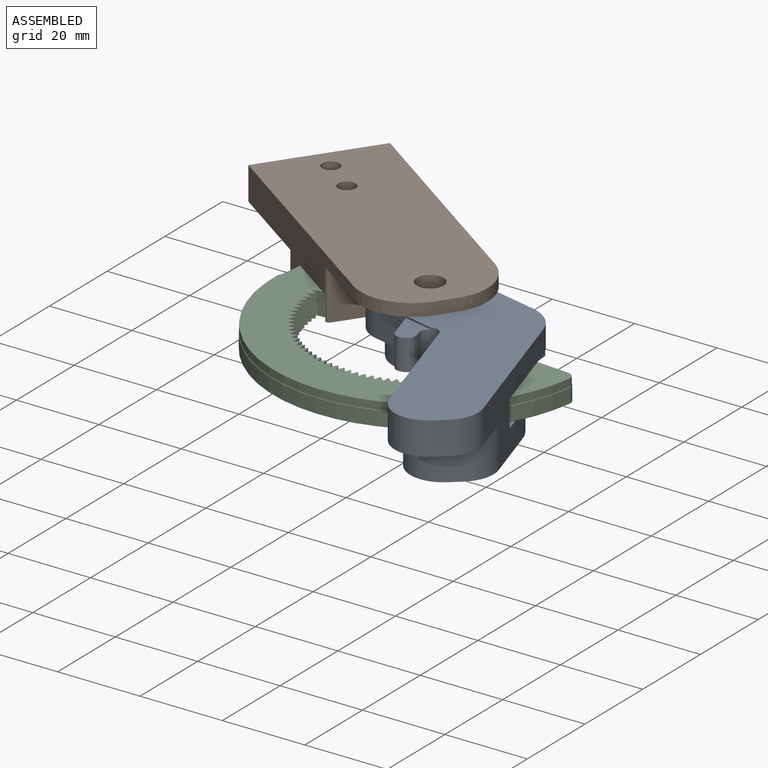
[diagram: assembled view]
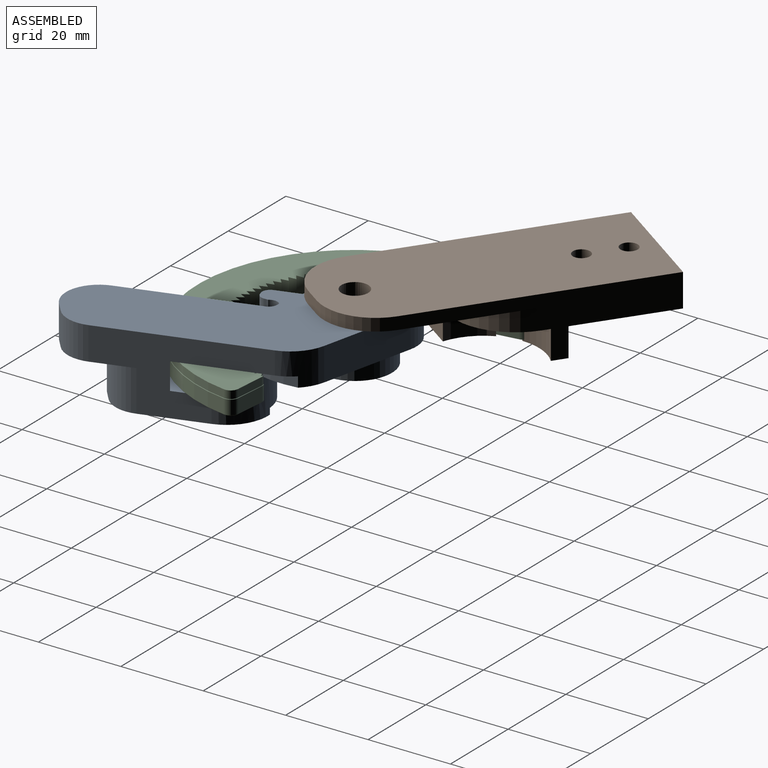
[diagram: assembled view, second angle]
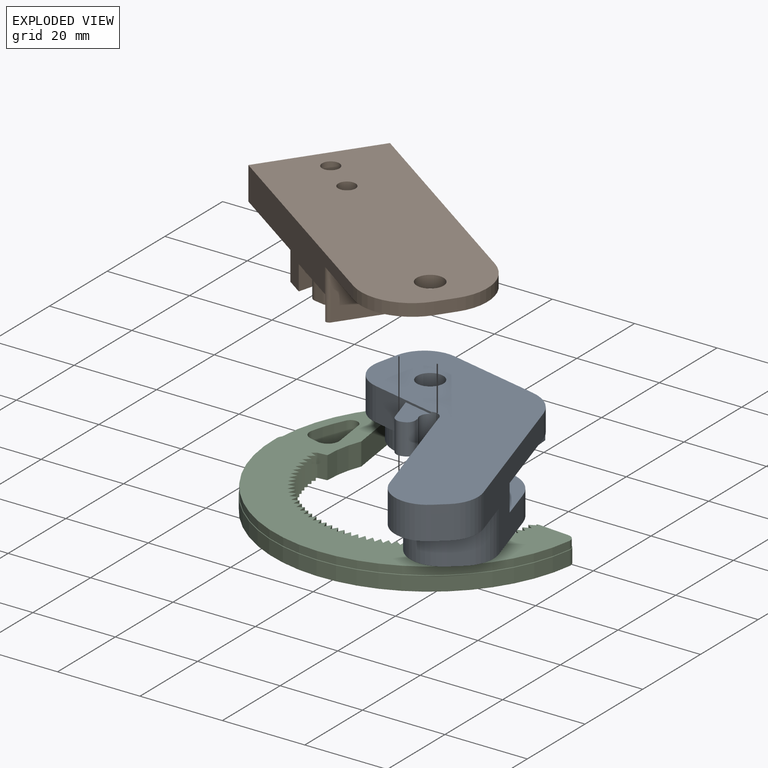
[diagram: exploded view]
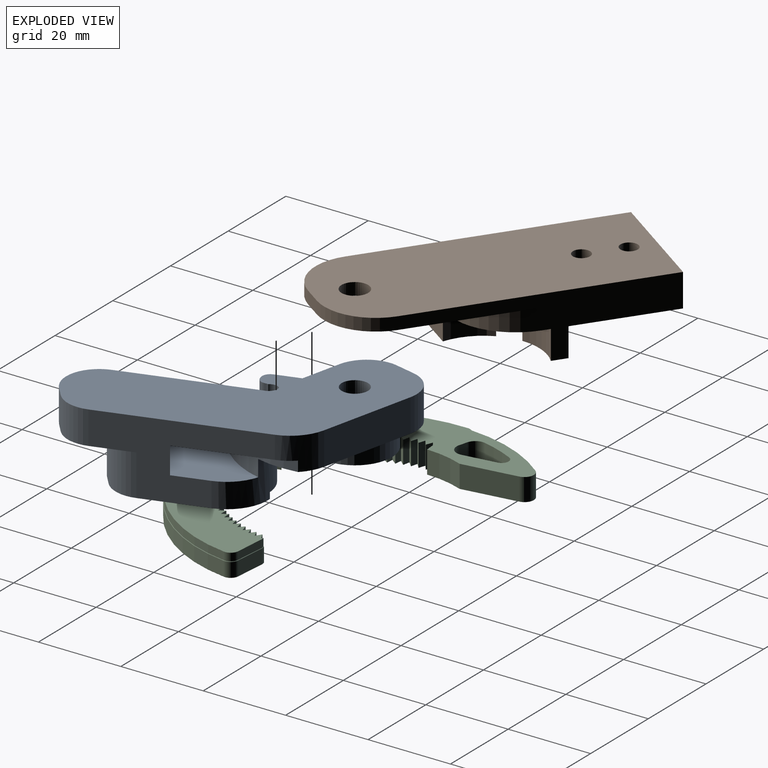
[diagram: exploded view, second angle]
ASSEMBLY  parts=3 mates=2
PART A: 41 faces, bbox 53.5x60.4x18 mm
  f0: cylinder r=6.7mm len=13.4mm, axis (0,0,1), area 210.5mm2, adj f1,f8
  f1: plane 13.4x13.4mm, normal (0,0,-1), area 108.9mm2, adj f0,f40
  f2: cylinder r=22mm len=13.57mm, axis (0,0,1), area 22.3mm2, adj f3,f4,f5,f29
  f3: plane 13.57x8.03mm, normal (0,0,-1), area 53.4mm2, adj f2,f5,f6,f9,f11,f29
  f4: plane 33.34x25.85mm, normal (0,0,-1), area 544.9mm2, adj f2,f5,f14,f15,f17,f18,f29
  f5: cylinder r=10mm len=17.69mm, axis (0,0,-1), area 165.5mm2, adj f2,f3,f4,f6,f16,f18,f22,f36
  f6: plane 8.5x3.92mm, normal (-0.43,-0.9,0), area 36.9mm2, adj f3,f5,f9,f22
  f7: cylinder r=9mm len=18mm, axis (0,0,-1), area 282.7mm2, adj f8,f22
  f8: plane 18x18mm, normal (0,0,-1), area 113.4mm2, adj f0,f7
  f9: cylinder r=2.16mm len=16.5mm, axis (0,0,-1), area 73.2mm2, adj f3,f6,f10,f11,f22,f28,f30,f35
  f10: plane 60.43x53.48mm, normal (0,0,1), area 1477.7mm2, adj f9,f11,f12,f13,f18,f19,f20,f21
  f11: cylinder r=3mm len=16.5mm, axis (0,0,1), area 7.7mm2, adj f3,f9,f10,f29
  f12: cylinder r=8mm len=13.33mm, axis (0,0,1), area 126.4mm2, adj f10,f13,f29,f39
  f13: plane 8x2.75mm, normal (0.6,0.8,0), area 27.5mm2, adj f10,f12,f19,f39
  f14: cylinder r=8mm len=13.33mm, axis (0,0,-1), area 154.7mm2, adj f4,f15,f16,f29,f38,f39
  f15: plane 10x2.75mm, normal (0.6,0.8,0), area 34.4mm2, adj f4,f14,f17,f39
  f16: plane 30x19.43mm, normal (0,0,1), area 318mm2, adj f5,f14,f18,f29,f36,f38
  f17: cylinder r=8mm len=10mm, axis (0,0,-1), area 93.4mm2, adj f4,f15,f18,f39
  f18: plane 33.73x19.47mm, normal (-0.5,0.87,0), area 379.1mm2, adj f4,f5,f10,f16,f17,f19,f20,f37
  f19: cylinder r=8mm len=8.8mm, axis (0,0,1), area 74.7mm2, adj f10,f13,f18,f39
  f20: cylinder r=10mm len=8.66mm, axis (0,0,1), area 72.1mm2, adj f10,f18,f21,f22,f36,f37
  f21: plane 23.23x8mm, normal (-1,0,0), area 185.8mm2, adj f10,f20,f22,f25
  f22: plane 38.5x28.06mm, normal (0,0,-1), area 468.5mm2, adj f5,f6,f7,f9,f20,f21,f25,f26
  f23: plane 5.5x4mm, normal (0.5,-0.87,0), area 21.3mm2, adj f24,f36
  f24: cylinder r=2.75mm len=6.86mm, axis (-0.5,0.87,0), area 66.8mm2, adj f23,f29,f36
  f25: cylinder r=8mm len=8mm, axis (0,0,1), area 100.5mm2, adj f10,f21,f22,f26
  f26: plane 8x5mm, normal (0,-1,0), area 40mm2, adj f10,f22,f25,f27
  f27: cylinder r=8mm len=8mm, axis (0,0,1), area 100.5mm2, adj f10,f22,f26,f28
  f28: plane 16.21x8mm, normal (1,0,0), area 74.1mm2, adj f9,f10,f22,f27,f34,f35
  f29: plane 26.98x18mm, normal (0.5,-0.87,0), area 338.4mm2, adj f2,f3,f4,f10,f11,f12,f14,f16
  f30: cylinder r=3mm len=7.5mm, axis (0,0,1), area 5.5mm2, adj f9,f22,f33,f35
  f31: cylinder r=2mm len=7.5mm, axis (0,0,1), area 23.6mm2, adj f22,f32,f34,f35
  f32: plane 7.5x0.43mm, normal (0.87,0.5,0), area 3.8mm2, adj f22,f31,f33,f35
  f33: cylinder r=2mm len=7.5mm, axis (0,0,1), area 21.3mm2, adj f22,f30,f32,f35
  f34: plane 7.5x6.06mm, normal (0.5,-0.87,0), area 52.5mm2, adj f22,f28,f31,f35
  f35: plane 7.67x7.06mm, normal (0,0,1), area 35.2mm2, adj f9,f28,f30,f31,f32,f33,f34
  f36: cylinder r=25.5mm len=27mm, axis (0,0,1), area 142.7mm2, adj f5,f16,f20,f22,f23,f24,f29,f37
  f37: plane 39.88x19.43mm, normal (0,0,-1), area 350.1mm2, adj f18,f20,f29,f36,f38
  f38: cylinder r=40mm len=17.56mm, axis (0,0,1), area 139.7mm2, adj f14,f16,f18,f29,f37,f39
  f39: plane 23.41x21.58mm, normal (0,0,-1), area 191.6mm2, adj f12,f13,f14,f15,f17,f18,f19,f29
  f40: cylinder r=3.2mm len=8mm, axis (0,0,-1), area 160.8mm2, adj f1,f10
PART B: 41 faces, bbox 73x30x15 mm
  f0: plane 4.14x3.86mm, normal (0.68,-0.73,0), area 5.7mm2, adj f1,f2,f3,f34
  f1: cylinder r=13.5mm len=10.79mm, axis (0,0,-1), area 79.2mm2, adj f0,f3,f4,f6,f38
  f2: cylinder r=13.5mm len=10.79mm, axis (0,0,-1), area 78.3mm2, adj f0,f3,f5,f7,f8
  f3: plane 17.35x16.56mm, normal (0,0,1), area 197.8mm2, adj f0,f1,f2,f8,f9,f38
  f4: plane 6x0.57mm, normal (-0.68,0.73,0), area 4.7mm2, adj f1,f6,f31,f34
  f5: plane 6x4.71mm, normal (-0.68,0.73,0), area 38.6mm2, adj f2,f7,f27,f34
  f6: plane 30x5.83mm, normal (0,0,1), area 89.2mm2, adj f1,f4,f31,f33,f36,f37,f38
  f7: plane 15.32x10.79mm, normal (0,0,1), area 63.7mm2, adj f2,f5,f8,f17,f18,f19,f27
  f8: plane 14x12mm, normal (1,0,0), area 161mm2, adj f2,f3,f7,f9,f17,f21
  f9: cylinder r=15mm len=15mm, axis (0,0,1), area 117.8mm2, adj f3,f8,f21,f38
  f10: cylinder r=2.1mm len=4.2mm, axis (0,0,-1), area 42.2mm2, adj f15,f40
  f11: cylinder r=2.1mm len=4.2mm, axis (0,0,-1), area 42.2mm2, adj f15,f40
  f12: plane 23.5x4.8mm, normal (0,1,0), area 112.8mm2, adj f13,f15,f16,f39
  f13: plane 20x4.8mm, normal (-1,0,0), area 96mm2, adj f12,f14,f15,f16
  f14: plane 23.5x4.8mm, normal (0,-1,0), area 112.8mm2, adj f13,f15,f16,f39
  f15: plane 23.5x20mm, normal (0,0,1), area 442.3mm2, adj f10,f11,f12,f13,f14,f39
  f16: plane 30x24.25mm, normal (0,0,1), area 257.5mm2, adj f12,f13,f14,f36,f37,f38,f39
  f17: cylinder r=1mm len=12mm, axis (0,0,1), area 17.3mm2, adj f7,f8,f18,f21,f34,f37
  f18: cylinder r=1mm len=6mm, axis (0,0,1), area 4.2mm2, adj f7,f17,f19,f34
  f19: cylinder r=25mm len=9.49mm, axis (0,0,-1), area 62.7mm2, adj f7,f18,f27,f34
  f20: cylinder r=12.5mm len=12.5mm, axis (0,0,1), area 58.9mm2, adj f21,f22,f38,f40
  f21: plane 43x30mm, normal (0,0,1), area 788.3mm2, adj f8,f9,f17,f20,f22,f23,f35,f37
  f22: plane 5x3mm, normal (1,0,0), area 15mm2, adj f20,f21,f23,f40
  f23: cylinder r=12.5mm len=12.5mm, axis (0,0,1), area 58.9mm2, adj f21,f22,f37,f40
  f24: cylinder r=2mm len=6mm, axis (0,0,-1), area 19.6mm2, adj f25,f26,f32,f34
  f25: plane 6x1.9mm, normal (0.41,0.91,0), area 12.5mm2, adj f24,f26,f28,f34
  f26: plane 9.38x7.79mm, normal (0,0,1), area 47.6mm2, adj f24,f25,f28,f29,f30,f32
  f27: cylinder r=2mm len=6mm, axis (0,0,-1), area 7.4mm2, adj f5,f7,f19,f34
  f28: cylinder r=2.5mm len=6mm, axis (0,0,-1), area 29.5mm2, adj f25,f26,f29,f34
  f29: plane 6x4.05mm, normal (0.68,-0.73,0), area 33.2mm2, adj f26,f28,f30,f34
  f30: cylinder r=1.75mm len=6mm, axis (0,0,-1), area 26.3mm2, adj f26,f29,f32,f34
  f31: cylinder r=2mm len=6mm, axis (0,0,-1), area 26.8mm2, adj f4,f6,f33,f34
  f32: cylinder r=34.6mm len=6.02mm, axis (0,0,-1), area 37.6mm2, adj f24,f26,f30,f34
  f33: cylinder r=38mm len=18.46mm, axis (0,0,-1), area 113.3mm2, adj f6,f31,f34,f37
  f34: plane 20.28x18.26mm, normal (0,0,1), area 175.7mm2, adj f0,f4,f5,f17,f18,f19,f24,f25
  f35: cylinder r=3.25mm len=6.5mm, axis (0,0,-1), area 61.3mm2, adj f21,f40
  f36: plane 30x7mm, normal (-1,0,0), area 210mm2, adj f6,f16,f37,f38
  f37: plane 60.5x15mm, normal (0,1,0), area 450.2mm2, adj f6,f16,f17,f21,f23,f33,f34,f36
  f38: plane 60.5x15mm, normal (0,-1,0), area 357.7mm2, adj f1,f3,f6,f9,f16,f20,f21,f36
  f39: plane 30x8mm, normal (-1,0,0), area 144mm2, adj f12,f14,f15,f16,f37,f38,f40
  f40: plane 73x30mm, normal (0,0,-1), area 2062mm2, adj f10,f11,f20,f22,f23,f35,f37,f38
PART C: 131 faces, bbox 82.2x63.3x5.5 mm
  f0: cylinder r=2.3mm len=5.5mm, axis (0,0,-1), area 29.3mm2, adj f2,f9,f124,f125
  f1: cylinder r=25mm len=9.29mm, axis (0,0,-1), area 51.7mm2, adj f9,f10,f124,f125
  f2: cylinder r=37.5mm len=21.97mm, axis (0,0,-1), area 127.5mm2, adj f0,f11,f12,f17,f124,f125,f126
  f3: cylinder r=2.5mm len=5.5mm, axis (0,0,-1), area 21.1mm2, adj f4,f6,f124,f125
  f4: cylinder r=35mm len=8.18mm, axis (0,0,-1), area 46.7mm2, adj f3,f7,f124,f125
  f5: cylinder r=2.7mm len=5.5mm, axis (0,0,-1), area 29.2mm2, adj f6,f8,f124,f125
  f6: plane 5.5x2.14mm, normal (0.17,-0.98,0), area 12mm2, adj f3,f5,f124,f125
  f7: cylinder r=1.75mm len=5.5mm, axis (0,0,-1), area 24.4mm2, adj f4,f8,f124,f125
  f8: plane 7.84x5.5mm, normal (-0.98,0.22,0), area 44.2mm2, adj f5,f7,f124,f125
  f9: plane 12.93x5.5mm, normal (0.97,-0.22,0), area 73mm2, adj f0,f1,f124,f125
  f10: plane 5.5x2.28mm, normal (0.18,0.98,0), area 12.7mm2, adj f1,f123,f124,f125
  f11: cylinder r=2mm len=3.4mm, axis (0,0,1), area 5mm2, adj f2,f12,f17,f24
  f12: torus R=1.9mm, axis (0,0,-1), area 0.2mm2, adj f2,f11,f20,f124
  f13: torus R=1.9mm, axis (0,0,1), area 0.1mm2, adj f14,f18,f19,f130
  f14: cylinder r=0.1mm len=7.31mm, axis (1,0,0), area 1.1mm2, adj f13,f15,f26,f129
  f15: torus R=1.9mm, axis (0,0,1), area 0.5mm2, adj f14,f16,f25,f128
  f16: torus R=37.9mm, axis (0,0,1), area 18.1mm2, adj f15,f17,f24,f127
  f17: torus R=1.9mm, axis (0,0,1), area 0.2mm2, adj f2,f11,f16,f126
  f18: plane 5.53x0.61mm, normal (-0.42,0.91,0), area 3.3mm2, adj f13,f19,f23,f122,f124,f125,f130
  f19: cylinder r=2mm len=3.4mm, axis (0,0,1), area 3.2mm2, adj f13,f18,f23,f26
  f20: torus R=37.9mm, axis (0,0,1), area 18.1mm2, adj f12,f21,f24,f124
  f21: torus R=1.9mm, axis (0,0,-1), area 0.5mm2, adj f20,f22,f25,f124
  f22: cylinder r=0.1mm len=7.31mm, axis (1,0,0), area 1.1mm2, adj f21,f23,f26,f124
  f23: torus R=1.9mm, axis (0,0,-1), area 0.1mm2, adj f18,f19,f22,f124
  f24: cylinder r=38mm len=75.88mm, axis (0,0,1), area 391.6mm2, adj f11,f16,f20,f25
  f25: cylinder r=2mm len=3.4mm, axis (0,0,1), area 11.1mm2, adj f15,f21,f24,f26
  f26: plane 7.31x3.4mm, normal (0,-1,0), area 24.9mm2, adj f14,f19,f22,f25
  f27: plane 5.5x1.64mm, normal (0.24,-0.97,0), area 9.3mm2, adj f28,f30,f124,f125
  f28: plane 5.5x1.37mm, normal (0.68,0.74,0), area 10.2mm2, adj f27,f29,f124,f125
  f29: plane 5.5x1.61mm, normal (0.3,-0.95,0), area 9.3mm2, adj f28,f123,f124,f125
  f30: plane 5.5x1.33mm, normal (0.72,0.69,0), area 10.2mm2, adj f27,f31,f124,f125
  f31: plane 5.5x1.66mm, normal (0.18,-0.98,0), area 9.3mm2, adj f30,f32,f124,f125
  f32: plane 5.5x1.41mm, normal (0.76,0.65,0), area 10.2mm2, adj f31,f33,f124,f125
  f33: plane 5.5x1.68mm, normal (0.12,-0.99,0), area 9.3mm2, adj f32,f34,f124,f125
  f34: plane 5.5x1.48mm, normal (0.8,0.6,0), area 10.2mm2, adj f33,f35,f124,f125
  f35: plane 5.5x1.69mm, normal (0.06,-1,0), area 9.3mm2, adj f34,f36,f124,f125
  f36: plane 5.5x1.55mm, normal (0.84,0.55,0), area 10.2mm2, adj f35,f37,f124,f125
  f37: plane 5.5x1.69mm, normal (-0.01,-1,0), area 9.3mm2, adj f36,f38,f124,f125
  f38: plane 5.5x1.61mm, normal (0.87,0.49,0), area 10.2mm2, adj f37,f39,f124,f125
  f39: plane 5.5x1.69mm, normal (-0.07,-1,0), area 9.3mm2, adj f38,f40,f124,f125
  f40: plane 5.5x1.66mm, normal (0.9,0.44,0), area 10.2mm2, adj f39,f41,f124,f125
  f41: plane 5.5x1.68mm, normal (-0.13,-0.99,0), area 9.3mm2, adj f40,f42,f124,f125
  f42: plane 5.5x1.71mm, normal (0.93,0.38,0), area 10.2mm2, adj f41,f43,f124,f125
  f43: plane 5.5x1.66mm, normal (-0.19,-0.98,0), area 9.3mm2, adj f42,f44,f124,f125
  f44: plane 5.5x1.75mm, normal (0.95,0.32,0), area 10.2mm2, adj f43,f45,f124,f125
  f45: plane 5.5x1.64mm, normal (-0.26,-0.97,0), area 9.3mm2, adj f44,f46,f124,f125
  f46: plane 5.5x1.79mm, normal (0.97,0.26,0), area 10.2mm2, adj f45,f47,f124,f125
  f47: plane 5.5x1.61mm, normal (-0.32,-0.95,0), area 9.3mm2, adj f46,f48,f124,f125
  f48: plane 5.5x1.81mm, normal (0.98,0.2,0), area 10.2mm2, adj f47,f49,f124,f125
  f49: plane 5.5x1.57mm, normal (-0.38,-0.93,0), area 9.3mm2, adj f48,f50,f124,f125
  f50: plane 5.5x1.83mm, normal (0.99,0.14,0), area 10.2mm2, adj f49,f51,f124,f125
  f51: plane 5.5x1.53mm, normal (-0.43,-0.9,0), area 9.3mm2, adj f50,f52,f124,f125
  f52: plane 5.5x1.85mm, normal (1,0.08,0), area 10.2mm2, adj f51,f53,f124,f125
  f53: plane 5.5x1.48mm, normal (-0.49,-0.87,0), area 9.3mm2, adj f52,f54,f124,f125
  f54: plane 5.5x1.85mm, normal (1,0.01,0), area 10.2mm2, adj f53,f55,f124,f125
  f55: plane 5.5x1.42mm, normal (-0.54,-0.84,0), area 9.3mm2, adj f54,f56,f124,f125
  f56: plane 5.5x1.85mm, normal (1,-0.05,0), area 10.2mm2, adj f55,f57,f124,f125
  f57: plane 5.5x1.36mm, normal (-0.59,-0.8,0), area 9.3mm2, adj f56,f58,f124,f125
  f58: plane 5.5x1.84mm, normal (0.99,-0.11,0), area 10.2mm2, adj f57,f59,f124,f125
  f59: plane 5.5x1.3mm, normal (-0.64,-0.77,0), area 9.3mm2, adj f58,f60,f124,f125
  f60: plane 5.5x1.82mm, normal (0.98,-0.18,0), area 10.2mm2, adj f59,f61,f124,f125
  f61: plane 5.5x1.22mm, normal (-0.69,-0.72,0), area 9.3mm2, adj f60,f62,f124,f125
  f62: plane 5.5x1.8mm, normal (0.97,-0.24,0), area 10.2mm2, adj f61,f63,f124,f125
  f63: plane 5.5x1.24mm, normal (-0.73,-0.68,0), area 9.3mm2, adj f62,f64,f124,f125
  f64: plane 5.5x1.77mm, normal (0.95,-0.3,0), area 10.2mm2, adj f63,f65,f124,f125
  f65: plane 5.5x1.31mm, normal (-0.78,-0.63,0), area 9.3mm2, adj f64,f66,f124,f125
  f66: plane 5.5x1.73mm, normal (0.93,-0.36,0), area 10.2mm2, adj f65,f67,f124,f125
  f67: plane 5.5x1.38mm, normal (-0.81,-0.58,0), area 9.3mm2, adj f66,f68,f124,f125
  f68: plane 5.5x1.68mm, normal (0.91,-0.41,0), area 10.2mm2, adj f67,f69,f124,f125
  f69: plane 5.5x1.44mm, normal (-0.85,-0.53,0), area 9.3mm2, adj f68,f70,f124,f125
  f70: plane 5.5x1.63mm, normal (0.88,-0.47,0), area 10.2mm2, adj f69,f71,f124,f125
  f71: plane 5.5x1.49mm, normal (-0.88,-0.48,0), area 9.3mm2, adj f70,f72,f124,f125
  f72: plane 5.5x1.58mm, normal (0.85,-0.53,0), area 10.2mm2, adj f71,f73,f124,f125
  f73: plane 5.5x1.54mm, normal (-0.91,-0.42,0), area 9.3mm2, adj f72,f74,f124,f125
  f74: plane 5.5x1.51mm, normal (0.82,-0.58,0), area 10.2mm2, adj f73,f75,f124,f125
  f75: plane 5.5x1.58mm, normal (-0.93,-0.36,0), area 9.3mm2, adj f74,f76,f124,f125
  f76: plane 5.5x1.44mm, normal (0.78,-0.63,0), area 10.2mm2, adj f75,f77,f124,f125
  f77: plane 5.5x1.61mm, normal (-0.95,-0.3,0), area 9.3mm2, adj f76,f78,f124,f125
  f78: plane 5.5x1.37mm, normal (0.74,-0.68,0), area 10.2mm2, adj f77,f79,f124,f125
  f79: plane 5.5x1.64mm, normal (-0.97,-0.24,0), area 9.3mm2, adj f78,f80,f124,f125
  f80: plane 5.5x1.33mm, normal (0.69,-0.72,0), area 10.2mm2, adj f79,f81,f124,f125
  f81: plane 5.5x1.66mm, normal (-0.98,-0.18,0), area 9.3mm2, adj f80,f82,f124,f125
  f82: plane 5.5x1.41mm, normal (0.65,-0.76,0), area 10.2mm2, adj f81,f83,f124,f125
  f83: plane 5.5x1.68mm, normal (-0.99,-0.12,0), area 9.3mm2, adj f82,f84,f124,f125
  f84: plane 5.5x1.48mm, normal (0.6,-0.8,0), area 10.2mm2, adj f83,f85,f124,f125
  f85: plane 5.5x1.69mm, normal (-1,-0.06,0), area 9.3mm2, adj f84,f86,f124,f125
  f86: plane 5.5x1.55mm, normal (0.55,-0.84,0), area 10.2mm2, adj f85,f87,f124,f125
  f87: plane 5.5x1.69mm, normal (-1,0.01,0), area 9.3mm2, adj f86,f88,f124,f125
  f88: plane 5.5x1.61mm, normal (0.49,-0.87,0), area 10.2mm2, adj f87,f89,f124,f125
  f89: plane 5.5x1.69mm, normal (-1,0.07,0), area 9.3mm2, adj f88,f90,f124,f125
  f90: plane 5.5x1.66mm, normal (0.44,-0.9,0), area 10.2mm2, adj f89,f91,f124,f125
  f91: plane 5.5x1.68mm, normal (-0.99,0.13,0), area 9.3mm2, adj f90,f92,f124,f125
  f92: plane 5.5x1.71mm, normal (0.38,-0.93,0), area 10.2mm2, adj f91,f93,f124,f125
  f93: plane 5.5x1.66mm, normal (-0.98,0.19,0), area 9.3mm2, adj f92,f94,f124,f125
  f94: plane 5.5x1.75mm, normal (0.32,-0.95,0), area 10.2mm2, adj f93,f95,f124,f125
  f95: plane 5.5x1.64mm, normal (-0.97,0.26,0), area 9.3mm2, adj f94,f96,f124,f125
  f96: plane 5.5x1.79mm, normal (0.26,-0.97,0), area 10.2mm2, adj f95,f97,f124,f125
  f97: plane 5.5x1.61mm, normal (-0.95,0.32,0), area 9.3mm2, adj f96,f98,f124,f125
  f98: plane 5.5x1.81mm, normal (0.2,-0.98,0), area 10.2mm2, adj f97,f99,f124,f125
  f99: plane 5.5x1.57mm, normal (-0.93,0.38,0), area 9.3mm2, adj f98,f100,f124,f125
  f100: plane 5.5x1.83mm, normal (0.14,-0.99,0), area 10.2mm2, adj f99,f101,f124,f125
  f101: plane 5.5x1.53mm, normal (-0.9,0.43,0), area 9.3mm2, adj f100,f102,f124,f125
  f102: plane 5.5x1.85mm, normal (0.08,-1,0), area 10.2mm2, adj f101,f103,f124,f125
  f103: plane 5.5x1.48mm, normal (-0.87,0.49,0), area 9.3mm2, adj f102,f104,f124,f125
  f104: plane 5.5x1.85mm, normal (0.01,-1,0), area 10.2mm2, adj f103,f105,f124,f125
  f105: plane 5.5x1.42mm, normal (-0.84,0.54,0), area 9.3mm2, adj f104,f106,f124,f125
  f106: plane 5.5x1.85mm, normal (-0.05,-1,0), area 10.2mm2, adj f105,f107,f124,f125
  f107: plane 5.5x1.36mm, normal (-0.8,0.59,0), area 9.3mm2, adj f106,f108,f124,f125
  f108: plane 5.5x1.84mm, normal (-0.11,-0.99,0), area 10.2mm2, adj f107,f109,f124,f125
  f109: plane 5.5x1.3mm, normal (-0.77,0.64,0), area 9.3mm2, adj f108,f110,f124,f125
  f110: plane 5.5x1.82mm, normal (-0.18,-0.98,0), area 10.2mm2, adj f109,f111,f124,f125
  f111: plane 5.5x1.22mm, normal (-0.72,0.69,0), area 9.3mm2, adj f110,f112,f124,f125
  f112: plane 5.5x1.8mm, normal (-0.24,-0.97,0), area 10.2mm2, adj f111,f113,f124,f125
  f113: plane 5.5x1.24mm, normal (-0.68,0.73,0), area 9.3mm2, adj f112,f114,f124,f125
  f114: plane 5.5x1.77mm, normal (-0.3,-0.95,0), area 10.2mm2, adj f113,f115,f124,f125
  f115: plane 5.5x1.31mm, normal (-0.63,0.78,0), area 9.3mm2, adj f114,f116,f124,f125
  f116: plane 5.5x1.73mm, normal (-0.36,-0.93,0), area 10.2mm2, adj f115,f117,f124,f125
  f117: plane 5.5x1.38mm, normal (-0.58,0.81,0), area 9.3mm2, adj f116,f118,f124,f125
  f118: plane 5.5x1.68mm, normal (-0.41,-0.91,0), area 10.2mm2, adj f117,f119,f124,f125
  f119: plane 5.5x1.44mm, normal (-0.53,0.85,0), area 9.3mm2, adj f118,f120,f124,f125
  f120: plane 5.5x1.63mm, normal (-0.47,-0.88,0), area 10.2mm2, adj f119,f121,f124,f125
  f121: plane 5.5x1.49mm, normal (-0.48,0.88,0), area 9.3mm2, adj f120,f122,f124,f125
  f122: plane 5.5x1.58mm, normal (-0.53,-0.85,0), area 10.2mm2, adj f18,f121,f124,f125
  f123: plane 5.5x0.93mm, normal (0.63,0.78,0), area 6.6mm2, adj f10,f29,f124,f125
  f124: plane 75.69x59.99mm, normal (0,0,1), area 1221.2mm2, adj f0,f1,f2,f3,f4,f5,f6,f7
  f125: plane 75.69x59.99mm, normal (0,0,-1), area 1221.2mm2, adj f0,f1,f2,f3,f4,f5,f6,f7
  f126: cylinder r=1.9mm len=1.9mm, axis (0,0,1), area 2.4mm2, adj f2,f17,f125,f127
  f127: cylinder r=37.9mm len=75.68mm, axis (0,0,1), area 218.2mm2, adj f16,f125,f126,f128
  f128: cylinder r=1.9mm len=2.01mm, axis (0,0,1), area 5.9mm2, adj f15,f125,f127,f129
  f129: plane 7.31x1.9mm, normal (0,-1,0), area 13.9mm2, adj f14,f125,f128,f130
  f130: cylinder r=1.9mm len=1.9mm, axis (0,0,1), area 1.6mm2, adj f13,f18,f125,f129
PLACE A rot(axis=(0,0,-1),102.8deg) t=(-30.33,194.34,0.3)mm
PLACE B rot(axis=(0.95,-0.3,0),180deg) t=(-64.06,229.59,11.3)mm
PLACE C rot(axis=(1,-0.04,0),180deg) t=(-20.08,180.57,0.26)mm
MATE cylindrical B.f26 <-> C.f124  axis (0,0,-1) through (-50.3,190.58,-3.7)mm
MATE cylindrical A.f0 <-> B.f35  axis (0,0,1) through (-20.09,180.73,8.3)mm
